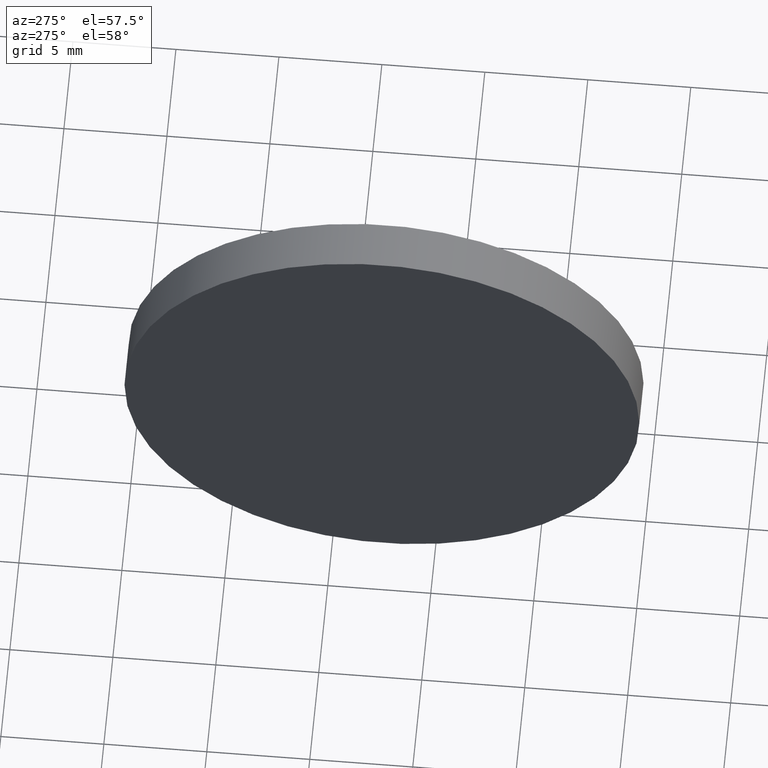
[diagram: clean part render]
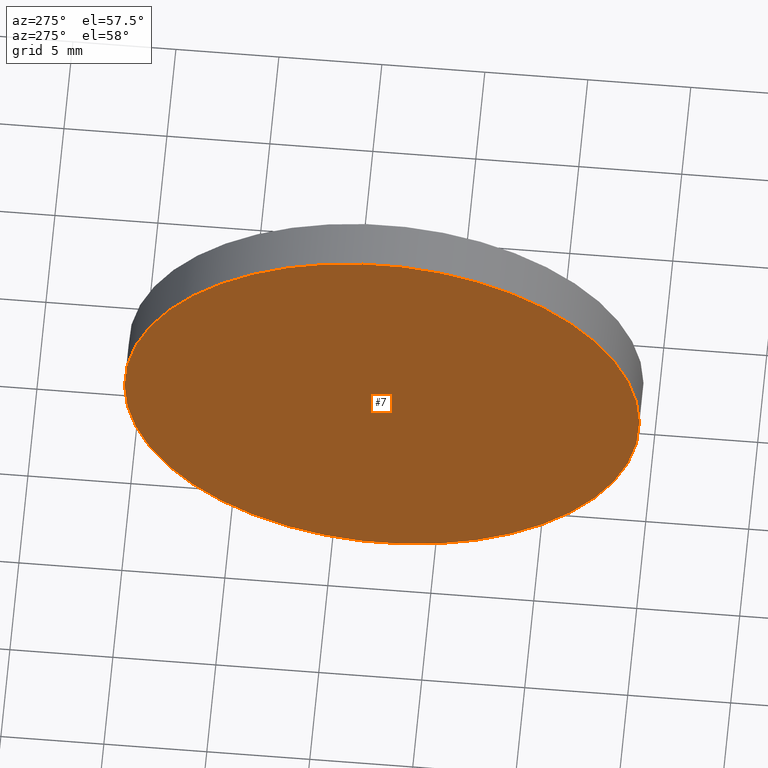
[diagram: same view with one face highlighted and labeled with its STEP entity id]
A machine part, auxiliary view. The second image highlights one B-rep face of the part: STEP entity #7.
In plain terms, the highlighted planar face has unit normal (1, -0, 0).
Its self-contained STEP definition (entity closure, byte-faithful):
#1 = AXIS2_PLACEMENT_3D ( 'NONE', #85, #37, #5 ) ;
#5 = DIRECTION ( 'NONE',  ( -5.551115123125784700E-016, -1.000000000000000000, 0.0000000000000000000 ) ) ;
#7 = ADVANCED_FACE ( 'NONE', ( #128 ), #112, .F. ) ;
#14 = CIRCLE ( 'NONE', #80, 12.49999999999999600 ) ;
#37 = DIRECTION ( 'NONE',  ( -1.000000000000000000, 7.636108817321419600E-016, -0.0000000000000000000 ) ) ;
#44 = EDGE_CURVE ( 'NONE', #129, #166, #57, .T. ) ;
#53 = ORIENTED_EDGE ( 'NONE', *, *, #130, .T. ) ;
#57 = CIRCLE ( 'NONE', #1, 12.49999999999999600 ) ;
#62 = EDGE_LOOP ( 'NONE', ( #114, #53 ) ) ;
#64 = DIRECTION ( 'NONE',  ( -1.000000000000000000, 7.636108817321419600E-016, -0.0000000000000000000 ) ) ;
#68 = AXIS2_PLACEMENT_3D ( 'NONE', #84, #132, #99 ) ;
#76 = DIRECTION ( 'NONE',  ( -5.551115123125784700E-016, -1.000000000000000000, 0.0000000000000000000 ) ) ;
#80 = AXIS2_PLACEMENT_3D ( 'NONE', #159, #64, #76 ) ;
#84 = CARTESIAN_POINT ( 'NONE',  ( 57.35819015802111000, 32.57872591329309100, 0.0000000000000000000 ) ) ;
#85 = CARTESIAN_POINT ( 'NONE',  ( 57.35819015802111000, 32.57872591329309800, 0.0000000000000000000 ) ) ;
#99 = DIRECTION ( 'NONE',  ( 7.636108817321419600E-016, 1.000000000000000000, 0.0000000000000000000 ) ) ;
#112 = PLANE ( 'NONE',  #68 ) ;
#114 = ORIENTED_EDGE ( 'NONE', *, *, #44, .T. ) ;
#124 = CARTESIAN_POINT ( 'NONE',  ( 57.35819015802110200, 20.07872591329309800, 0.0000000000000000000 ) ) ;
#128 = FACE_OUTER_BOUND ( 'NONE', #62, .T. ) ;
#129 = VERTEX_POINT ( 'NONE', #124 ) ;
#130 = EDGE_CURVE ( 'NONE', #166, #129, #14, .T. ) ;
#132 = DIRECTION ( 'NONE',  ( 1.000000000000000000, -7.636108817321419600E-016, 0.0000000000000000000 ) ) ;
#150 = CARTESIAN_POINT ( 'NONE',  ( 57.35819015802111700, 45.07872591329309100, 1.530808498934191500E-015 ) ) ;
#159 = CARTESIAN_POINT ( 'NONE',  ( 57.35819015802111000, 32.57872591329309800, 0.0000000000000000000 ) ) ;
#166 = VERTEX_POINT ( 'NONE', #150 ) ;